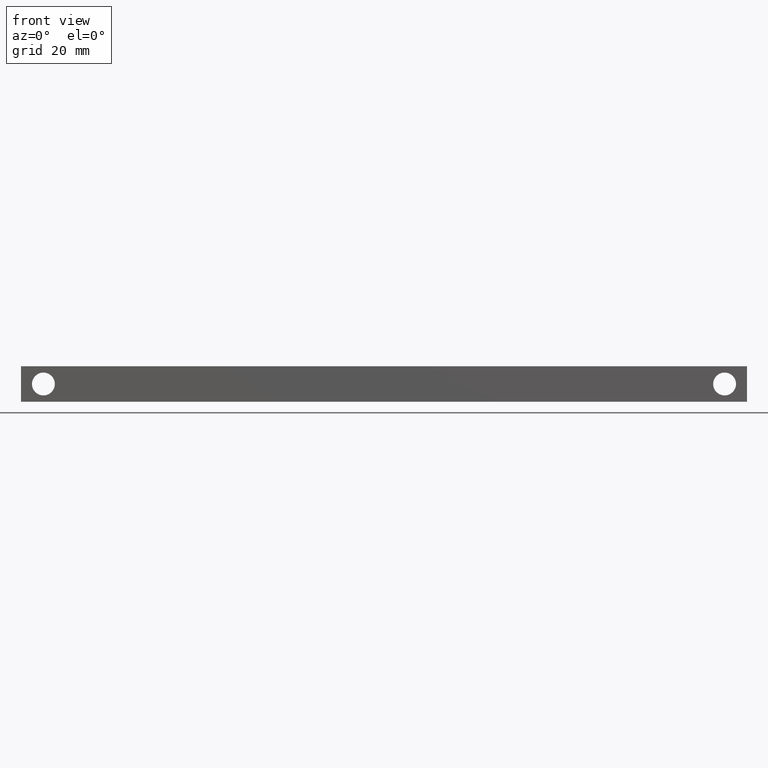
[diagram: clean part render]
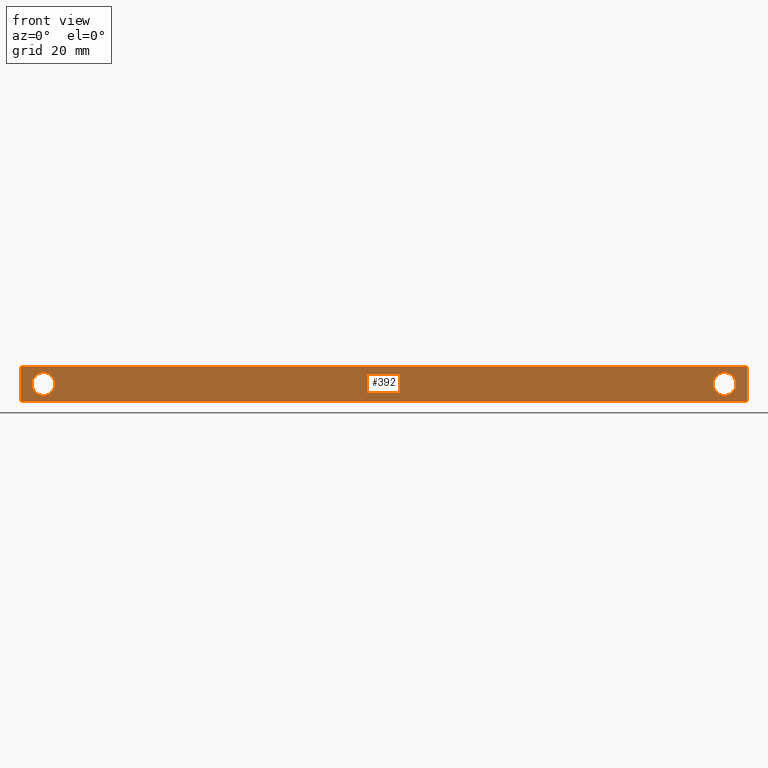
[diagram: same view with one face highlighted and labeled with its STEP entity id]
A machine part, front view. The second image highlights one B-rep face of the part: STEP entity #392.
In plain terms, the highlighted planar face has unit normal (0, 1, 0).
Its self-contained STEP definition (entity closure, byte-faithful):
#392 = ADVANCED_FACE ( 'NONE', ( #7127, #7136, #7137 ), #7168, .F. ) ;
#1196 = EDGE_LOOP ( 'NONE', ( #4605, #4606 ) ) ;
#1208 = EDGE_LOOP ( 'NONE', ( #4603, #4583 ) ) ;
#1218 = EDGE_LOOP ( 'NONE', ( #4621, #4654, #4686, #4699 ) ) ;
#1541 = VERTEX_POINT ( 'NONE', #9127 ) ;
#1577 = VERTEX_POINT ( 'NONE', #9134 ) ;
#1604 = VERTEX_POINT ( 'NONE', #9114 ) ;
#1614 = VERTEX_POINT ( 'NONE', #9146 ) ;
#1633 = VERTEX_POINT ( 'NONE', #9196 ) ;
#1646 = VERTEX_POINT ( 'NONE', #9226 ) ;
#1672 = VERTEX_POINT ( 'NONE', #9210 ) ;
#1699 = VERTEX_POINT ( 'NONE', #9220 ) ;
#2082 = AXIS2_PLACEMENT_3D ( 'NONE', #7128, #7171, #7144 ) ;
#4170 = EDGE_CURVE ( 'NONE', #1672, #1614, #9338, .T. ) ;
#4175 = EDGE_CURVE ( 'NONE', #1633, #1577, #6618, .T. ) ;
#4183 = EDGE_CURVE ( 'NONE', #1699, #1614, #8495, .T. ) ;
#4184 = EDGE_CURVE ( 'NONE', #1646, #1541, #6587, .T. ) ;
#4189 = EDGE_CURVE ( 'NONE', #1604, #1699, #8507, .T. ) ;
#4195 = EDGE_CURVE ( 'NONE', #1604, #1672, #8009, .T. ) ;
#4583 = ORIENTED_EDGE ( 'NONE', *, *, #5968, .T. ) ;
#4603 = ORIENTED_EDGE ( 'NONE', *, *, #4175, .T. ) ;
#4605 = ORIENTED_EDGE ( 'NONE', *, *, #4184, .T. ) ;
#4606 = ORIENTED_EDGE ( 'NONE', *, *, #5942, .T. ) ;
#4621 = ORIENTED_EDGE ( 'NONE', *, *, #4170, .T. ) ;
#4654 = ORIENTED_EDGE ( 'NONE', *, *, #4183, .F. ) ;
#4686 = ORIENTED_EDGE ( 'NONE', *, *, #4189, .F. ) ;
#4699 = ORIENTED_EDGE ( 'NONE', *, *, #4195, .T. ) ;
#5942 = EDGE_CURVE ( 'NONE', #1541, #1646, #6336, .T. ) ;
#5968 = EDGE_CURVE ( 'NONE', #1577, #1633, #6419, .T. ) ;
#6336 = CIRCLE ( 'NONE', #6346, 2.100000000000000100 ) ;
#6346 = AXIS2_PLACEMENT_3D ( 'NONE', #9813, #9809, #9798 ) ;
#6416 = AXIS2_PLACEMENT_3D ( 'NONE', #9916, #9724, #9747 ) ;
#6419 = CIRCLE ( 'NONE', #6416, 2.099999999999989400 ) ;
#6570 = AXIS2_PLACEMENT_3D ( 'NONE', #9385, #9359, #9370 ) ;
#6571 = AXIS2_PLACEMENT_3D ( 'NONE', #8502, #8497, #8501 ) ;
#6586 = VECTOR ( 'NONE', #8508, 1000.000000000000000 ) ;
#6587 = CIRCLE ( 'NONE', #6571, 2.100000000000000100 ) ;
#6607 = VECTOR ( 'NONE', #7997, 1000.000000000000000 ) ;
#6610 = VECTOR ( 'NONE', #9364, 1000.000000000000000 ) ;
#6618 = CIRCLE ( 'NONE', #6570, 2.099999999999989400 ) ;
#6621 = VECTOR ( 'NONE', #7980, 1000.000000000000000 ) ;
#7127 = FACE_BOUND ( 'NONE', #1208, .T. ) ;
#7128 = CARTESIAN_POINT ( 'NONE',  ( 0.0000000000000000000, 0.0000000000000000000, 6.500000000000000000 ) ) ;
#7136 = FACE_BOUND ( 'NONE', #1196, .T. ) ;
#7137 = FACE_OUTER_BOUND ( 'NONE', #1218, .T. ) ;
#7144 = DIRECTION ( 'NONE',  ( 0.0000000000000000000, -0.0000000000000000000, 1.000000000000000000 ) ) ;
#7168 = PLANE ( 'NONE',  #2082 ) ;
#7171 = DIRECTION ( 'NONE',  ( 0.0000000000000000000, 1.000000000000000000, 0.0000000000000000000 ) ) ;
#7975 = CARTESIAN_POINT ( 'NONE',  ( 0.0000000000000000000, 0.0000000000000000000, 6.500000000000000000 ) ) ;
#7980 = DIRECTION ( 'NONE',  ( -0.0000000000000000000, -0.0000000000000000000, -1.000000000000000000 ) ) ;
#7997 = DIRECTION ( 'NONE',  ( 1.000000000000000000, 0.0000000000000000000, 0.0000000000000000000 ) ) ;
#8009 = LINE ( 'NONE', #7975, #6621 ) ;
#8495 = LINE ( 'NONE', #8503, #6586 ) ;
#8497 = DIRECTION ( 'NONE',  ( 0.0000000000000000000, 1.000000000000000000, 0.0000000000000000000 ) ) ;
#8501 = DIRECTION ( 'NONE',  ( 0.0000000000000000000, 0.0000000000000000000, 1.000000000000000000 ) ) ;
#8502 = CARTESIAN_POINT ( 'NONE',  ( 4.099999999999992500, 0.0000000000000000000, 3.250000000000024400 ) ) ;
#8503 = CARTESIAN_POINT ( 'NONE',  ( 133.0000000000000000, 0.0000000000000000000, 6.500000000000000000 ) ) ;
#8507 = LINE ( 'NONE', #8509, #6607 ) ;
#8508 = DIRECTION ( 'NONE',  ( -0.0000000000000000000, -0.0000000000000000000, -1.000000000000000000 ) ) ;
#8509 = CARTESIAN_POINT ( 'NONE',  ( 0.0000000000000000000, 0.0000000000000000000, 6.500000000000000000 ) ) ;
#9114 = CARTESIAN_POINT ( 'NONE',  ( 0.0000000000000000000, 0.0000000000000000000, 6.500000000000000000 ) ) ;
#9127 = CARTESIAN_POINT ( 'NONE',  ( 4.099999999999992500, 0.0000000000000000000, 1.150000000000023900 ) ) ;
#9134 = CARTESIAN_POINT ( 'NONE',  ( 128.9000000000000100, 0.0000000000000000000, 1.150000000000019500 ) ) ;
#9146 = CARTESIAN_POINT ( 'NONE',  ( 133.0000000000000000, 0.0000000000000000000, 0.0000000000000000000 ) ) ;
#9196 = CARTESIAN_POINT ( 'NONE',  ( 128.9000000000000100, 0.0000000000000000000, 5.349999999999998800 ) ) ;
#9210 = CARTESIAN_POINT ( 'NONE',  ( 0.0000000000000000000, 0.0000000000000000000, 0.0000000000000000000 ) ) ;
#9220 = CARTESIAN_POINT ( 'NONE',  ( 133.0000000000000000, 0.0000000000000000000, 6.500000000000000000 ) ) ;
#9226 = CARTESIAN_POINT ( 'NONE',  ( 4.099999999999992500, 0.0000000000000000000, 5.350000000000024500 ) ) ;
#9338 = LINE ( 'NONE', #9374, #6610 ) ;
#9359 = DIRECTION ( 'NONE',  ( 0.0000000000000000000, 1.000000000000000000, 0.0000000000000000000 ) ) ;
#9364 = DIRECTION ( 'NONE',  ( 1.000000000000000000, 0.0000000000000000000, 0.0000000000000000000 ) ) ;
#9370 = DIRECTION ( 'NONE',  ( 0.0000000000000000000, 0.0000000000000000000, 1.000000000000000000 ) ) ;
#9374 = CARTESIAN_POINT ( 'NONE',  ( 0.0000000000000000000, 0.0000000000000000000, 0.0000000000000000000 ) ) ;
#9385 = CARTESIAN_POINT ( 'NONE',  ( 128.9000000000000100, 0.0000000000000000000, 3.250000000000009300 ) ) ;
#9724 = DIRECTION ( 'NONE',  ( 0.0000000000000000000, 1.000000000000000000, 0.0000000000000000000 ) ) ;
#9747 = DIRECTION ( 'NONE',  ( 0.0000000000000000000, 0.0000000000000000000, 1.000000000000000000 ) ) ;
#9798 = DIRECTION ( 'NONE',  ( 0.0000000000000000000, 0.0000000000000000000, 1.000000000000000000 ) ) ;
#9809 = DIRECTION ( 'NONE',  ( 0.0000000000000000000, 1.000000000000000000, 0.0000000000000000000 ) ) ;
#9813 = CARTESIAN_POINT ( 'NONE',  ( 4.099999999999992500, 0.0000000000000000000, 3.250000000000024400 ) ) ;
#9916 = CARTESIAN_POINT ( 'NONE',  ( 128.9000000000000100, 0.0000000000000000000, 3.250000000000009300 ) ) ;